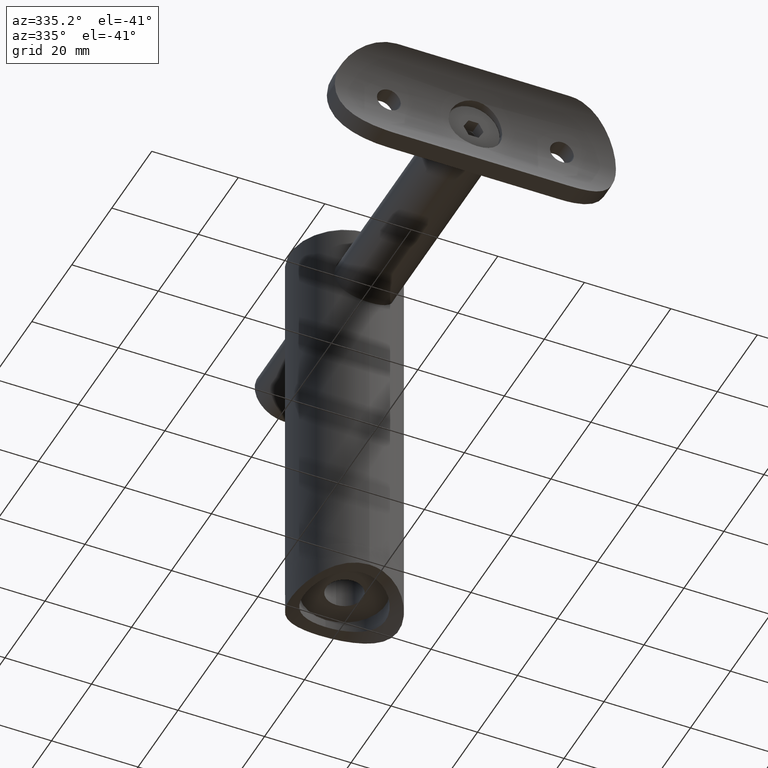
[diagram: clean part render]
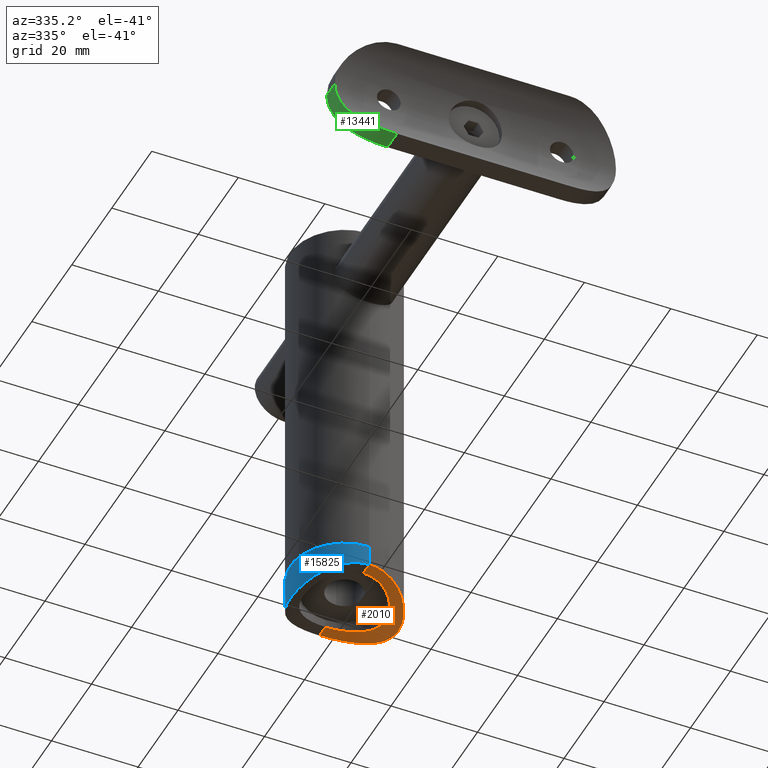
[diagram: same view with three faces highlighted in distinct colors, each labeled with its STEP entity id]
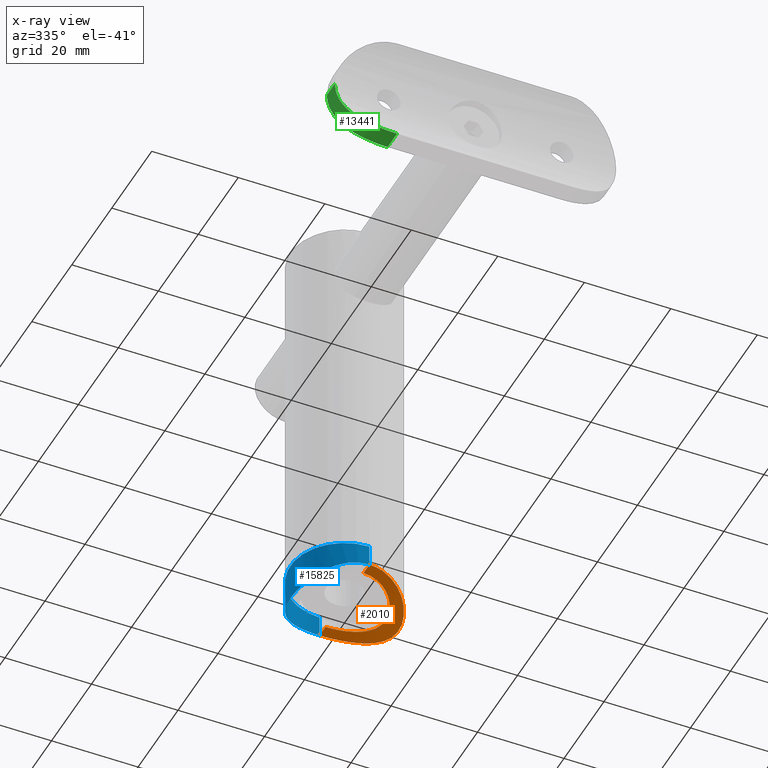
[diagram: x-ray of the same camera — body ghosted, the three highlighted faces saturated]
A machine part, auxiliary view with three faces highlighted in distinct colors.
The next image is the same camera in x-ray (body ghosted, the three faces saturated) — at least one of them is partly hidden behind the body in this view.
Their STEP definitions:

[orange] entity #2010 — the highlighted cylindrical surface (partial cylindrical patch) has radius 21.2 mm, axis along (0, 1, 0).
#20 = CARTESIAN_POINT ( 'NONE',  ( 12.49952788043968255, 0.4368485482069777714, -4.076863514619261331 ) ) ;
#234 = CARTESIAN_POINT ( 'NONE',  ( 11.19951824176104260, 5.610365273027625221, -3.195789650799768289 ) ) ;
#294 = CARTESIAN_POINT ( 'NONE',  ( 4.484770986791653868, 11.67494392594038644, -0.4761762759779024634 ) ) ;
#368 = CARTESIAN_POINT ( 'NONE',  ( 0.6275527403728607956, -9.484530375464524710, -0.006946249597816606808 ) ) ;
#439 = CARTESIAN_POINT ( 'NONE',  ( 9.484201583095373422, -0.6321545745067549404, -2.239748020085416513 ) ) ;
#1792 = CARTESIAN_POINT ( 'NONE',  ( 12.05928981790097509, 3.315947863389200112, -3.763379523277600835 ) ) ;
#1858 = CARTESIAN_POINT ( 'NONE',  ( 6.327442067174433582, 10.81070993117193701, -0.9537559661941126254 ) ) ;
#1871 = CARTESIAN_POINT ( 'NONE',  ( 2.494860140251018876, -9.188019338493548460, -0.1382508987464481087 ) ) ;
#1939 = CARTESIAN_POINT ( 'NONE',  ( 2.497496432925480736, 9.187099242428551804, -0.1386512340528949505 ) ) ;
#2005 = CARTESIAN_POINT ( 'NONE',  ( 3.954528069767159426, -8.643450230156611624, -0.3700392544246411397 ) ) ;
#2010 = ADVANCED_FACE ( 'NONE', ( #2729 ), #17287, .F. ) ;
#2027 = VECTOR ( 'NONE', #8477, 1000.000000000000000 ) ;
#2064 = VERTEX_POINT ( 'NONE', #8362 ) ;
#2070 = CARTESIAN_POINT ( 'NONE',  ( 1.530808498934191521E-15, -12.50000000000000000, 0.000000000000000000 ) ) ;
#2082 = CARTESIAN_POINT ( 'NONE',  ( 6.285444926192725212, 7.150170555696141683, -0.9479603564727804299 ) ) ;
#2199 = CARTESIAN_POINT ( 'NONE',  ( 4.105579123586817758, -11.81380058909568476, -0.3974590877189465021 ) ) ;
#2497 = EDGE_CURVE ( 'NONE', #9251, #8139, #6833, .T. ) ;
#2558 = ORIENTED_EDGE ( 'NONE', *, *, #2497, .T. ) ;
#2649 = EDGE_CURVE ( 'NONE', #16453, #9251, #19268, .T. ) ;
#2729 = FACE_OUTER_BOUND ( 'NONE', #4294, .T. ) ;
#3441 = CARTESIAN_POINT ( 'NONE',  ( 1.579045547333426391, 9.373056352659103752, -0.05665375992293917445 ) ) ;
#3500 = CARTESIAN_POINT ( 'NONE',  ( 3.314268895872203302, -12.05973822206781776, -0.2568123239795945811 ) ) ;
#3515 = CARTESIAN_POINT ( 'NONE',  ( 6.277740334854450488, -7.136851971882867574, -0.9492873198018613179 ) ) ;
#3587 = CARTESIAN_POINT ( 'NONE',  ( 4.784301838411238350, 8.213179465520736855, -0.5450195661238212974 ) ) ;
#3646 = CARTESIAN_POINT ( 'NONE',  ( 10.80857782698150693, -6.291928922265640267, -2.960889035143796644 ) ) ;
#3655 = CARTESIAN_POINT ( 'NONE',  ( 0.3180640098494555423, 9.500000000000005329, 1.712888848892041935E-17 ) ) ;
#3905 = CARTESIAN_POINT ( 'NONE',  ( 1.530808498934191521E-15, -12.50000000000000000, 0.000000000000000000 ) ) ;
#3919 = VECTOR ( 'NONE', #16134, 1000.000000000000000 ) ;
#4294 = EDGE_LOOP ( 'NONE', ( #12440, #17736, #2558, #13272 ) ) ;
#4663 = CARTESIAN_POINT ( 'NONE',  ( 7.658649217430773426, 9.887116871149988384, -1.428917258316854344 ) ) ;
#4806 = CARTESIAN_POINT ( 'NONE',  ( 8.275085783090288416, 9.377256695960113575, -1.678894091352529871 ) ) ;
#5092 = CARTESIAN_POINT ( 'NONE',  ( 3.090247328760950651, -9.005024596866380904, -0.2182794052958286768 ) ) ;
#5160 = CARTESIAN_POINT ( 'NONE',  ( 1.268301397354656634, 9.420298035749835819, -0.03561470730267386753 ) ) ;
#5221 = CARTESIAN_POINT ( 'NONE',  ( 9.926636468171464500, -7.639131853456513355, -2.460587857928715039 ) ) ;
#5233 = CARTESIAN_POINT ( 'NONE',  ( 1.257325311143241864, -9.421744633931506741, -0.03497028654710137435 ) ) ;
#5294 = CARTESIAN_POINT ( 'NONE',  ( 0.8493063021244323663, -12.47821017736088756, -0.01286860730927485812 ) ) ;
#5417 = CARTESIAN_POINT ( 'NONE',  ( 0.000000000000000000, -12.50000000000000000, -21.19999999999999929 ) ) ;
#5741 = AXIS2_PLACEMENT_3D ( 'NONE', #5417, #18016, #14922 ) ;
#6273 = CARTESIAN_POINT ( 'NONE',  ( 10.81845405890102718, 6.312809980033599722, -2.960938029448109354 ) ) ;
#6407 = CARTESIAN_POINT ( 'NONE',  ( 9.907181247822171244, 7.632686742754889231, -2.455152407378314194 ) ) ;
#6562 = CARTESIAN_POINT ( 'NONE',  ( 9.500164495551658206, 0.3083332013167103813, -2.247773888224446459 ) ) ;
#6614 = CARTESIAN_POINT ( 'NONE',  ( 9.421823641441763542, -8.253338742496664437, -2.198572594055990148 ) ) ;
#6624 = CARTESIAN_POINT ( 'NONE',  ( 1.571899491397569681, -9.374307366943451569, -0.05609940030373498226 ) ) ;
#6664 = EDGE_CURVE ( 'NONE', #8139, #2064, #8109, .T. ) ;
#6698 = CARTESIAN_POINT ( 'NONE',  ( 9.004623482620557340, -3.090168278521506551, -2.005593315994512515 ) ) ;
#6833 = B_SPLINE_CURVE_WITH_KNOTS ( 'NONE', 3,
 ( #19433, #17843, #368, #5233, #6624, #1871, #5092, #2005, #16269, #9834, #13088, #14537, #15983, #3515, #19152, #6844, #12959, #8275, #16126, #6698, #8206, #19218, #8408, #439, #12888, #6562, #19365, #17710, #11445, #9972, #9902, #13161, #11515, #14397, #17578, #2082, #8138, #19287, #3587, #11373, #11583, #14607, #1939, #3441, #5160, #16201, #3655, #14677 ),
 .UNSPECIFIED., .F., .F.,
 ( 4, 2, 2, 2, 2, 2, 2, 2, 2, 2, 2, 2, 2, 2, 2, 2, 2, 2, 2, 2, 2, 2, 2, 4 ),
 ( 0.03010768622472317912, 0.03104749670329303921, 0.03198730718186289929, 0.03386692813900261251, 0.03480673861757246912, 0.03574654909614233267, 0.03668635957471218928, 0.03762617005328204589, 0.03950579101042176605, 0.04138541196756148621, 0.04326503292470119943, 0.04420484340327106298, 0.04514465388184091960, 0.04608446436041077621, 0.04702427483898063976, 0.04890389579612035298, 0.05078351675326008008, 0.05266313771039980024, 0.05454275866753952040, 0.05548256914610938395, 0.05642237962467924056, 0.05830200058181896766, 0.05924181106038882427, 0.06018162153895869476 ),
 .UNSPECIFIED. ) ;
#6844 = CARTESIAN_POINT ( 'NONE',  ( 7.159169670778224415, -6.274913268511824960, -1.240137327851930316 ) ) ;
#7852 = CARTESIAN_POINT ( 'NONE',  ( 12.16283172011047320, 2.913318855141288299, -3.835786719495810182 ) ) ;
#7921 = CARTESIAN_POINT ( 'NONE',  ( 1.677193835120719623, 12.41473863385456333, -0.05058743771265820227 ) ) ;
#8109 = LINE ( 'NONE', #17853, #3919 ) ;
#8138 = CARTESIAN_POINT ( 'NONE',  ( 5.810475658887211736, 7.540831483076037678, -0.8050407131529412341 ) ) ;
#8139 = VERTEX_POINT ( 'NONE', #13387 ) ;
#8206 = CARTESIAN_POINT ( 'NONE',  ( 9.187067631764410436, -2.498277563287346403, -2.093536295156249061 ) ) ;
#8275 = CARTESIAN_POINT ( 'NONE',  ( 8.230211339286329419, -4.784343041113610084, -1.659292500980773299 ) ) ;
#8328 = CARTESIAN_POINT ( 'NONE',  ( 11.68253881569350128, -4.464708600178402875, -3.508378586956061973 ) ) ;
#8362 = CARTESIAN_POINT ( 'NONE',  ( 0.000000000000000000, 12.50000000000000000, -5.261240927112904875E-16 ) ) ;
#8408 = CARTESIAN_POINT ( 'NONE',  ( 9.421294845262025319, -1.260516764465202000, -2.208411381633107684 ) ) ;
#8477 = DIRECTION ( 'NONE',  ( -0.000000000000000000, 1.000000000000000000, -0.000000000000000000 ) ) ;
#8658 = CARTESIAN_POINT ( 'NONE',  ( 0.000000000000000000, -12.50000000000000000, 0.000000000000000000 ) ) ;
#9251 = VERTEX_POINT ( 'NONE', #19480 ) ;
#9416 = CARTESIAN_POINT ( 'NONE',  ( 12.47743914675955779, 0.8590761027902540370, -4.060680339665353245 ) ) ;
#9620 = CARTESIAN_POINT ( 'NONE',  ( 9.131153934576976994, 8.545773481795480464, -2.064755425040019521 ) ) ;
#9760 = CARTESIAN_POINT ( 'NONE',  ( 10.59835307524082815, -6.639730706434157526, -2.837515640770630121 ) ) ;
#9834 = CARTESIAN_POINT ( 'NONE',  ( 4.783310945264682701, -8.213765227419397519, -0.5447870395397985677 ) ) ;
#9902 = CARTESIAN_POINT ( 'NONE',  ( 9.006626258510808114, 3.084760097826170888, -2.006523651473711922 ) ) ;
#9972 = CARTESIAN_POINT ( 'NONE',  ( 9.189751204263838957, 2.489596316880424709, -2.094826447112144496 ) ) ;
#10036 = CARTESIAN_POINT ( 'NONE',  ( 8.277917003856295253, -9.374850157636904768, -1.680064173656782511 ) ) ;
#11014 = CARTESIAN_POINT ( 'NONE',  ( 12.39224670344945345, 1.690183733302201174, -3.998982945155021174 ) ) ;
#11157 = CARTESIAN_POINT ( 'NONE',  ( 3.299544761782136071, 12.06386656912338573, -0.2544362983334328976 ) ) ;
#11232 = CARTESIAN_POINT ( 'NONE',  ( 11.81299108572394552, 4.107946293886027611, -3.595584469514716996 ) ) ;
#11373 = CARTESIAN_POINT ( 'NONE',  ( 4.239366036345280087, 8.507269633893045579, -0.4263258807038411424 ) ) ;
#11438 = CARTESIAN_POINT ( 'NONE',  ( 7.658205628427102063, -9.887548328762056471, -1.428715490893919027 ) ) ;
#11445 = CARTESIAN_POINT ( 'NONE',  ( 9.376383539940048806, 1.559915371507269333, -2.186104354117754500 ) ) ;
#11511 = CARTESIAN_POINT ( 'NONE',  ( 11.19286692429163033, -5.579736034962373026, -3.194160573709634576 ) ) ;
#11515 = CARTESIAN_POINT ( 'NONE',  ( 8.231209276049824553, 4.782705285943062101, -1.659707158651053893 ) ) ;
#11574 = CARTESIAN_POINT ( 'NONE',  ( 12.50092163456458572, -0.8325225752573196525, -4.077880983653365377 ) ) ;
#11583 = CARTESIAN_POINT ( 'NONE',  ( 3.955815279988136535, 8.642861845624873141, -0.3702836407211533842 ) ) ;
#12440 = ORIENTED_EDGE ( 'NONE', *, *, #18754, .T. ) ;
#12669 = CARTESIAN_POINT ( 'NONE',  ( 5.615852831644743581, 11.19741679516262600, -0.7426697937745310174 ) ) ;
#12888 = CARTESIAN_POINT ( 'NONE',  ( 9.499832844097339191, -0.3183877192732357253, -2.247607645243915098 ) ) ;
#12959 = CARTESIAN_POINT ( 'NONE',  ( 7.546544590892585447, -5.803101047029879389, -1.385225386363504452 ) ) ;
#13015 = CARTESIAN_POINT ( 'NONE',  ( 12.41682490114521542, -1.662227575578483441, -4.015612738538496096 ) ) ;
#13080 = CARTESIAN_POINT ( 'NONE',  ( 6.341786811947650371, -10.80157710299960350, -0.9585494183447895722 ) ) ;
#13088 = CARTESIAN_POINT ( 'NONE',  ( 5.046899678109953769, -8.054386237921365321, -0.6078148238815975768 ) ) ;
#13151 = CARTESIAN_POINT ( 'NONE',  ( 11.36768113948518533, -5.214514510065638042, -3.304441698743988187 ) ) ;
#13161 = CARTESIAN_POINT ( 'NONE',  ( 8.528820743348861200, 4.230162898690669415, -1.789485642318580538 ) ) ;
#13272 = ORIENTED_EDGE ( 'NONE', *, *, #6664, .T. ) ;
#13387 = CARTESIAN_POINT ( 'NONE',  ( 1.770460806215789106E-16, 9.500000000000001776, 9.112057225737407952E-16 ) ) ;
#14273 = B_SPLINE_CURVE_WITH_KNOTS ( 'NONE', 3,
 ( #15763, #17358, #7921, #18926, #11157, #19144, #294, #12669, #1858, #19068, #4663, #4806, #15695, #9620, #15835, #6407, #14317, #6273, #234, #17279, #11232, #1792, #7852, #18852, #11014, #9416, #20, #11574, #13015, #16045, #19352, #17637, #8328, #13151, #11511, #3646, #9760, #5221, #6614, #14736, #10036, #11438, #19494, #13080, #14665, #17767, #2199, #3500, #19275, #17830, #16256, #5294, #14525, #2070 ),
 .UNSPECIFIED., .F., .F.,
 ( 4, 2, 2, 2, 2, 2, 2, 2, 2, 2, 2, 2, 2, 2, 2, 2, 2, 2, 2, 2, 2, 2, 2, 2, 2, 2, 4 ),
 ( 0.04004282410750471810, 0.04254226347006971609, 0.04379198315135222203, 0.04504170283263472102, 0.04754114219519971901, 0.04879086187648222495, 0.05004058155776472394, 0.05129030123904722294, 0.05254002092032972887, 0.05503946028289473380, 0.05628917996417723280, 0.05753889964545973179, 0.05878861932674223079, 0.06003833900802472978, 0.06253777837058974165, 0.06378749805187224065, 0.06503721773315473964, 0.06628693741443722476, 0.06753665709571973763, 0.07003609645828472174, 0.07128581613956722074, 0.07253553582084971973, 0.07503497518341471773, 0.07628469486469721672, 0.07753441454597971572, 0.07878413422726221471, 0.08003385390854471371 ),
 .UNSPECIFIED. ) ;
#14317 = CARTESIAN_POINT ( 'NONE',  ( 10.14840342747128865, 7.308901243718507246, -2.585073453788892195 ) ) ;
#14397 = CARTESIAN_POINT ( 'NONE',  ( 7.546992758907244969, 5.802583587964756262, -1.385390471452557115 ) ) ;
#14525 = CARTESIAN_POINT ( 'NONE',  ( 0.4231827426424521477, -12.50000000000000178, 3.049318610115447941E-17 ) ) ;
#14537 = CARTESIAN_POINT ( 'NONE',  ( 5.556618797412577138, -7.711570629305333213, -0.7394703336228837243 ) ) ;
#14607 = CARTESIAN_POINT ( 'NONE',  ( 3.091537738773918242, 9.004584169050772857, -0.2184693847345247075 ) ) ;
#14665 = CARTESIAN_POINT ( 'NONE',  ( 5.634036949567876817, -11.18857916297122657, -0.7475340222135680168 ) ) ;
#14677 = CARTESIAN_POINT ( 'NONE',  ( 1.770460806215789106E-16, 9.500000000000001776, 9.112057225737407952E-16 ) ) ;
#14736 = CARTESIAN_POINT ( 'NONE',  ( 8.576233453199916923, -9.102626546136086461, -1.809681003019513623 ) ) ;
#14922 = DIRECTION ( 'NONE',  ( 0.000000000000000000, 0.000000000000000000, 1.000000000000000000 ) ) ;
#15695 = CARTESIAN_POINT ( 'NONE',  ( 8.569357823279592168, 9.109024265841888734, -1.806659297143442533 ) ) ;
#15763 = CARTESIAN_POINT ( 'NONE',  ( 0.000000000000000000, 12.50000000000000000, -5.261240927112904875E-16 ) ) ;
#15835 = CARTESIAN_POINT ( 'NONE',  ( 9.398677270982503273, 8.250758313400195831, -2.195094919896832586 ) ) ;
#15983 = CARTESIAN_POINT ( 'NONE',  ( 5.802747939028370716, -7.528133642313273199, -0.8081019980018004922 ) ) ;
#16045 = CARTESIAN_POINT ( 'NONE',  ( 12.16984790407604322, -2.883996753870297969, -3.840709158031506476 ) ) ;
#16126 = CARTESIAN_POINT ( 'NONE',  ( 8.528049326743902370, -4.231401509425090524, -1.789155950979903320 ) ) ;
#16134 = DIRECTION ( 'NONE',  ( -0.000000000000000000, 1.000000000000000000, -0.000000000000000000 ) ) ;
#16201 = CARTESIAN_POINT ( 'NONE',  ( 0.6371383030246021706, 9.483915768273302405, -0.007221795264935388335 ) ) ;
#16256 = CARTESIAN_POINT ( 'NONE',  ( 1.686513140915326892, -12.39284970661473828, -0.06302927873795291513 ) ) ;
#16269 = CARTESIAN_POINT ( 'NONE',  ( 4.237929542509485614, -8.507993653205097928, -0.4260297671875604708 ) ) ;
#16453 = VERTEX_POINT ( 'NONE', #3905 ) ;
#17279 = CARTESIAN_POINT ( 'NONE',  ( 11.67210911516328586, 4.491739155361240243, -3.501495300727552884 ) ) ;
#17287 = CYLINDRICAL_SURFACE ( 'NONE', #5741, 21.19999999999999929 ) ;
#17358 = CARTESIAN_POINT ( 'NONE',  ( 0.8474616539393307058, 12.50000000000000000, -5.374424050328533679E-16 ) ) ;
#17578 = CARTESIAN_POINT ( 'NONE',  ( 7.158647790673239086, 6.275788293500274229, -1.239897559073271927 ) ) ;
#17637 = CARTESIAN_POINT ( 'NONE',  ( 11.82258794161552373, -4.080128214362262362, -3.602040162122799316 ) ) ;
#17710 = CARTESIAN_POINT ( 'NONE',  ( 9.423119199064263540, 1.246379904746041323, -2.209317699341028174 ) ) ;
#17736 = ORIENTED_EDGE ( 'NONE', *, *, #2649, .T. ) ;
#17767 = CARTESIAN_POINT ( 'NONE',  ( 4.497906677117311069, -11.66996163373024764, -0.4789896541132562247 ) ) ;
#17830 = CARTESIAN_POINT ( 'NONE',  ( 2.099149467039291839, -12.32948117877257133, -0.1002009966568829374 ) ) ;
#17843 = CARTESIAN_POINT ( 'NONE',  ( 0.3134130146678049678, -9.500000000000001776, 7.404126750186650867E-16 ) ) ;
#17853 = CARTESIAN_POINT ( 'NONE',  ( 0.000000000000000000, -12.50000000000000000, 0.000000000000000000 ) ) ;
#18016 = DIRECTION ( 'NONE',  ( -0.000000000000000000, 1.000000000000000000, -0.000000000000000000 ) ) ;
#18754 = EDGE_CURVE ( 'NONE', #2064, #16453, #14273, .T. ) ;
#18852 = CARTESIAN_POINT ( 'NONE',  ( 12.32914928014637823, 2.100947460388598031, -3.953479877655619479 ) ) ;
#18926 = CARTESIAN_POINT ( 'NONE',  ( 2.897069353050997886, 12.16672379034243612, -0.1948899815732027530 ) ) ;
#19068 = CARTESIAN_POINT ( 'NONE',  ( 7.335528771759538991, 10.12938846727852393, -1.306364138595596858 ) ) ;
#19144 = CARTESIAN_POINT ( 'NONE',  ( 4.096177303198103026, 11.81715717646936170, -0.3955541790620945020 ) ) ;
#19152 = CARTESIAN_POINT ( 'NONE',  ( 6.507548724582323807, -6.927941348104147856, -1.022183798446198111 ) ) ;
#19218 = CARTESIAN_POINT ( 'NONE',  ( 9.373631752533530204, -1.575889711037794072, -2.184747713698973026 ) ) ;
#19268 = LINE ( 'NONE', #8658, #2027 ) ;
#19275 = CARTESIAN_POINT ( 'NONE',  ( 2.913028033381143356, -12.16292737376220501, -0.1970903410221248320 ) ) ;
#19287 = CARTESIAN_POINT ( 'NONE',  ( 5.047492488738597238, 8.053990395188916906, -0.6079671353264675115 ) ) ;
#19352 = CARTESIAN_POINT ( 'NONE',  ( 12.06641939663192176, -3.289765162964158662, -3.768324835594353939 ) ) ;
#19365 = CARTESIAN_POINT ( 'NONE',  ( 9.484863755966435050, 0.6212872423304436342, -2.240080453359254875 ) ) ;
#19433 = CARTESIAN_POINT ( 'NONE',  ( 1.163408702497735518E-15, -9.500000000000001776, 5.232710601427350400E-16 ) ) ;
#19480 = CARTESIAN_POINT ( 'NONE',  ( 1.163408702497735518E-15, -9.500000000000001776, 5.232710601427350400E-16 ) ) ;
#19494 = CARTESIAN_POINT ( 'NONE',  ( 7.337423735946516423, -10.12782281091194569, -1.307140519180895577 ) ) ;

[blue] entity #15825 — the highlighted cylindrical surface (partial cylindrical patch) has radius 12.5 mm, axis along (0, 0, -1).
#70 = ORIENTED_EDGE ( 'NONE', *, *, #6522, .F. ) ;
#195 = AXIS2_PLACEMENT_3D ( 'NONE', #2951, #9146, #15774 ) ;
#1112 = LINE ( 'NONE', #14214, #20343 ) ;
#1321 = CARTESIAN_POINT ( 'NONE',  ( -1.677193835120720955, -12.41473863385456156, -0.05058743771265820921 ) ) ;
#1390 = CARTESIAN_POINT ( 'NONE',  ( -12.05928981790097154, -3.315947863389198336, -3.763379523277602168 ) ) ;
#1457 = CARTESIAN_POINT ( 'NONE',  ( -3.299544761782136071, -12.06386656912337862, -0.2544362983334328976 ) ) ;
#1528 = CARTESIAN_POINT ( 'NONE',  ( -10.80857782698150871, 6.291928922265645596, -2.960889035143795756 ) ) ;
#1595 = CARTESIAN_POINT ( 'NONE',  ( -11.68253881569349950, 4.464708600178406428, -3.508378586956059308 ) ) ;
#2014 = CARTESIAN_POINT ( 'NONE',  ( 0.000000000000000000, 12.50000000000000000, 5.000000000000000000 ) ) ;
#2064 = VERTEX_POINT ( 'NONE', #8362 ) ;
#2163 = CARTESIAN_POINT ( 'NONE',  ( 0.000000000000000000, -6.123233995736764310E-16, 4.999999999999998224 ) ) ;
#2888 = CARTESIAN_POINT ( 'NONE',  ( -4.105579123586816870, 11.81380058909568298, -0.3974590877189427274 ) ) ;
#2951 = CARTESIAN_POINT ( 'NONE',  ( 0.000000000000000000, 0.000000000000000000, 0.000000000000000000 ) ) ;
#2957 = CARTESIAN_POINT ( 'NONE',  ( -4.497906677117297747, 11.66996163373025475, -0.4789896541132539487 ) ) ;
#3029 = CARTESIAN_POINT ( 'NONE',  ( -9.131153934576975217, -8.545773481795482240, -2.064755425040014636 ) ) ;
#3107 = CARTESIAN_POINT ( 'NONE',  ( -0.4242796211472562584, 12.49999999999999467, -5.563124168022411105E-16 ) ) ;
#3175 = CARTESIAN_POINT ( 'NONE',  ( -10.81845405890102718, -6.312809980033596169, -2.960938029448110242 ) ) ;
#3905 = CARTESIAN_POINT ( 'NONE',  ( 1.530808498934191521E-15, -12.50000000000000000, 0.000000000000000000 ) ) ;
#3947 = CIRCLE ( 'NONE', #19450, 12.50000000000000000 ) ;
#4478 = CARTESIAN_POINT ( 'NONE',  ( -8.275085783090281311, -9.377256695960115351, -1.678894091352528761 ) ) ;
#4608 = CARTESIAN_POINT ( 'NONE',  ( -12.32914928014637646, -2.100947460388592702, -3.953479877655620367 ) ) ;
#4682 = CARTESIAN_POINT ( 'NONE',  ( -12.16283172011047320, -2.913318855141282526, -3.835786719495810626 ) ) ;
#4694 = CYLINDRICAL_SURFACE ( 'NONE', #195, 12.50000000000000000 ) ;
#4751 = CARTESIAN_POINT ( 'NONE',  ( -7.337423735946506653, 10.12782281091194925, -1.307140519180897575 ) ) ;
#5689 = FACE_OUTER_BOUND ( 'NONE', #17216, .T. ) ;
#6015 = CARTESIAN_POINT ( 'NONE',  ( -1.686513140915326225, 12.39284970661473650, -0.06302927873795100000 ) ) ;
#6149 = CARTESIAN_POINT ( 'NONE',  ( -6.341786811947642377, 10.80157710299961416, -0.9585494183447915706 ) ) ;
#6213 = CARTESIAN_POINT ( 'NONE',  ( -11.19951824176104083, -5.610365273027632327, -3.195789650799769621 ) ) ;
#6292 = CARTESIAN_POINT ( 'NONE',  ( -10.59835307524083170, 6.639730706434162855, -2.837515640770625680 ) ) ;
#6465 = DIRECTION ( 'NONE',  ( -0.000000000000000000, 1.224646799147353207E-16, -1.000000000000000000 ) ) ;
#6522 = EDGE_CURVE ( 'NONE', #16453, #2064, #9959, .T. ) ;
#6787 = DIRECTION ( 'NONE',  ( 0.000000000000000000, 1.000000000000000000, 1.387778780781445676E-16 ) ) ;
#6922 = DIRECTION ( 'NONE',  ( -0.000000000000000000, 1.224646799147353207E-16, -1.000000000000000000 ) ) ;
#7067 = ORIENTED_EDGE ( 'NONE', *, *, #16369, .T. ) ;
#7267 = CARTESIAN_POINT ( 'NONE',  ( 1.530808498934191521E-15, -12.50000000000000000, 0.000000000000000000 ) ) ;
#7733 = CARTESIAN_POINT ( 'NONE',  ( -5.615852831644746246, -11.19741679516262423, -0.7426697937745319056 ) ) ;
#7805 = CARTESIAN_POINT ( 'NONE',  ( -12.06641939663192531, 3.289765162964161327, -3.768324835594354383 ) ) ;
#7868 = CARTESIAN_POINT ( 'NONE',  ( -12.39224670344945167, -1.690183733302201619, -3.998982945155021174 ) ) ;
#8114 = CARTESIAN_POINT ( 'NONE',  ( 0.000000000000000000, 12.50000000000000000, 1.530808498934191521E-15 ) ) ;
#8362 = CARTESIAN_POINT ( 'NONE',  ( 0.000000000000000000, 12.50000000000000000, -5.261240927112904875E-16 ) ) ;
#8634 = VERTEX_POINT ( 'NONE', #2014 ) ;
#9026 = CARTESIAN_POINT ( 'NONE',  ( -0.8474616539393305947, -12.50000000000000355, -0.000000000000000000 ) ) ;
#9146 = DIRECTION ( 'NONE',  ( -0.000000000000000000, 1.224646799147353207E-16, -1.000000000000000000 ) ) ;
#9152 = CARTESIAN_POINT ( 'NONE',  ( -11.19286692429163033, 5.579736034962381019, -3.194160573709634576 ) ) ;
#9221 = CARTESIAN_POINT ( 'NONE',  ( -11.67210911516328764, -4.491739155361245572, -3.501495300727554216 ) ) ;
#9357 = CARTESIAN_POINT ( 'NONE',  ( -9.926636468171466277, 7.639131853456515131, -2.460587857928711042 ) ) ;
#9433 = CARTESIAN_POINT ( 'NONE',  ( -3.314268895872201970, 12.05973822206781776, -0.2568123239795907509 ) ) ;
#9449 = DIRECTION ( 'NONE',  ( -0.000000000000000000, 1.224646799147353207E-16, -1.000000000000000000 ) ) ;
#9893 = VERTEX_POINT ( 'NONE', #10618 ) ;
#9959 = B_SPLINE_CURVE_WITH_KNOTS ( 'NONE', 3,
 ( #7267, #9026, #1321, #10889, #1457, #14203, #18798, #7733, #17299, #14058, #17230, #4478, #12487, #3029, #10963, #14133, #18659, #3175, #6213, #9221, #15711, #1390, #4682, #4608, #7868, #12346, #12549, #11032, #15652, #17098, #7805, #15578, #1595, #15508, #9152, #1528, #6292, #9357, #10815, #17031, #12617, #10757, #4751, #6149, #12417, #2957, #2888, #9433, #18723, #20267, #6015, #20403, #3107, #18871 ),
 .UNSPECIFIED., .F., .F.,
 ( 4, 2, 2, 2, 2, 2, 2, 2, 2, 2, 2, 2, 2, 2, 2, 2, 2, 2, 2, 2, 2, 2, 2, 2, 2, 2, 4 ),
 ( 1.489330742102178506E-18, 0.002502676506719043580, 0.003754014760078563419, 0.005005353013438084558, 0.007508029520157129440, 0.008759367773516652314, 0.01001070602687617432, 0.01126204428023569633, 0.01251338253359522007, 0.01501605904031426235, 0.01626739729367378262, 0.01751873554703330463, 0.01877007380039282664, 0.02002141205375234517, 0.02252408856047138572, 0.02377542681383090772, 0.02502676506719042973, 0.02627810332054994827, 0.02752944157390947028, 0.03003211808062851082, 0.03128345633398803977, 0.03253479458734756524, 0.03503747109406661620, 0.03628880934742614167, 0.03754014760078566715, 0.03879148585414519262, 0.04004282410750471810 ),
 .UNSPECIFIED. ) ;
#10618 = CARTESIAN_POINT ( 'NONE',  ( 1.530808498934191521E-15, -12.50000000000000000, 4.999999999999996447 ) ) ;
#10757 = CARTESIAN_POINT ( 'NONE',  ( -7.658205628427092293, 9.887548328762060024, -1.428715490893913032 ) ) ;
#10815 = CARTESIAN_POINT ( 'NONE',  ( -9.421823641441761765, 8.253338742496669767, -2.198572594055990148 ) ) ;
#10889 = CARTESIAN_POINT ( 'NONE',  ( -2.897069353050999663, -12.16672379034243434, -0.1948899815732027807 ) ) ;
#10963 = CARTESIAN_POINT ( 'NONE',  ( -9.398677270982499721, -8.250758313400194055, -2.195094919896831698 ) ) ;
#11032 = CARTESIAN_POINT ( 'NONE',  ( -12.50092163456458394, 0.8325225752573188753, -4.077880983653366265 ) ) ;
#11260 = EDGE_CURVE ( 'NONE', #9893, #16453, #1112, .T. ) ;
#12346 = CARTESIAN_POINT ( 'NONE',  ( -12.47743914675955601, -0.8590761027902552582, -4.060680339665352356 ) ) ;
#12417 = CARTESIAN_POINT ( 'NONE',  ( -5.634036949567863495, 11.18857916297123722, -0.7475340222135644641 ) ) ;
#12487 = CARTESIAN_POINT ( 'NONE',  ( -8.569357823279590392, -9.109024265841890511, -1.806659297143438980 ) ) ;
#12549 = CARTESIAN_POINT ( 'NONE',  ( -12.49952788043968255, -0.4368485482069772163, -4.076863514619260442 ) ) ;
#12617 = CARTESIAN_POINT ( 'NONE',  ( -8.277917003856288147, 9.374850157636908321, -1.680064173656778292 ) ) ;
#13815 = VECTOR ( 'NONE', #6465, 1000.000000000000000 ) ;
#14058 = CARTESIAN_POINT ( 'NONE',  ( -7.335528771759535438, -10.12938846727852571, -1.306364138595595970 ) ) ;
#14133 = CARTESIAN_POINT ( 'NONE',  ( -9.907181247822165915, -7.632686742754887455, -2.455152407378312418 ) ) ;
#14203 = CARTESIAN_POINT ( 'NONE',  ( -4.096177303198109243, -11.81715717646936348, -0.3955541790620944465 ) ) ;
#14214 = CARTESIAN_POINT ( 'NONE',  ( 1.530808498934191521E-15, -12.50000000000000000, -1.530808498934191521E-15 ) ) ;
#14558 = LINE ( 'NONE', #8114, #13815 ) ;
#15465 = ORIENTED_EDGE ( 'NONE', *, *, #17003, .T. ) ;
#15508 = CARTESIAN_POINT ( 'NONE',  ( -11.36768113948518710, 5.214514510065643371, -3.304441698743988631 ) ) ;
#15578 = CARTESIAN_POINT ( 'NONE',  ( -11.82258794161551663, 4.080128214362264139, -3.602040162122799760 ) ) ;
#15652 = CARTESIAN_POINT ( 'NONE',  ( -12.41682490114521720, 1.662227575578486993, -4.015612738538502313 ) ) ;
#15711 = CARTESIAN_POINT ( 'NONE',  ( -11.81299108572395085, -4.107946293886024058, -3.595584469514719217 ) ) ;
#15774 = DIRECTION ( 'NONE',  ( 0.000000000000000000, 1.000000000000000000, 1.224646799147353207E-16 ) ) ;
#15825 = ADVANCED_FACE ( 'NONE', ( #5689 ), #4694, .T. ) ;
#16369 = EDGE_CURVE ( 'NONE', #8634, #2064, #14558, .T. ) ;
#16453 = VERTEX_POINT ( 'NONE', #3905 ) ;
#17003 = EDGE_CURVE ( 'NONE', #9893, #8634, #3947, .T. ) ;
#17031 = CARTESIAN_POINT ( 'NONE',  ( -8.576233453199913370, 9.102626546136093566, -1.809681003019512291 ) ) ;
#17098 = CARTESIAN_POINT ( 'NONE',  ( -12.16984790407604500, 2.883996753870301966, -3.840709158031511805 ) ) ;
#17216 = EDGE_LOOP ( 'NONE', ( #19465, #15465, #7067, #70 ) ) ;
#17230 = CARTESIAN_POINT ( 'NONE',  ( -7.658649217430768097, -9.887116871149991937, -1.428917258316853012 ) ) ;
#17299 = CARTESIAN_POINT ( 'NONE',  ( -6.327442067174430917, -10.81070993117193524, -0.9537559661941119593 ) ) ;
#18659 = CARTESIAN_POINT ( 'NONE',  ( -10.14840342747128865, -7.308901243718507246, -2.585073453788890863 ) ) ;
#18723 = CARTESIAN_POINT ( 'NONE',  ( -2.913028033381145132, 12.16292737376221034, -0.1970903410221276075 ) ) ;
#18798 = CARTESIAN_POINT ( 'NONE',  ( -4.484770986791658309, -11.67494392594038821, -0.4761762759779034071 ) ) ;
#18871 = CARTESIAN_POINT ( 'NONE',  ( 0.000000000000000000, 12.50000000000000000, -5.261240927112904875E-16 ) ) ;
#19450 = AXIS2_PLACEMENT_3D ( 'NONE', #2163, #6922, #6787 ) ;
#19465 = ORIENTED_EDGE ( 'NONE', *, *, #11260, .F. ) ;
#20267 = CARTESIAN_POINT ( 'NONE',  ( -2.099149467039293615, 12.32948117877257665, -0.1002009966568856714 ) ) ;
#20343 = VECTOR ( 'NONE', #9449, 1000.000000000000000 ) ;
#20403 = CARTESIAN_POINT ( 'NONE',  ( -0.8493063021244290356, 12.47821017736088223, -0.01286860730927284584 ) ) ;

[green] entity #13441 — the highlighted cylindrical surface (partial cylindrical patch) has radius 12.5 mm, axis along (-0, 1, -0).
#429 = CARTESIAN_POINT ( 'NONE',  ( 12.50000000000000355, 3.318729470161013495, 20.00000000000000000 ) ) ;
#891 = CARTESIAN_POINT ( 'NONE',  ( 2.899666870893740089, 4.195241269652991711, 32.16611798350432139 ) ) ;
#1048 = LINE ( 'NONE', #15002, #16340 ) ;
#1137 = ORIENTED_EDGE ( 'NONE', *, *, #17678, .F. ) ;
#1213 = CARTESIAN_POINT ( 'NONE',  ( 12.50000000000000355, 8.077208171562681116, 20.84935178333090988 ) ) ;
#1251 = CARTESIAN_POINT ( 'NONE',  ( 11.68647699581961064, 2.872938612537728975, 24.45450101598523318 ) ) ;
#1316 = CARTESIAN_POINT ( 'NONE',  ( 0.8408319059978909271, -5.251604272976641764E-17, 32.50000000000000000 ) ) ;
#1451 = CARTESIAN_POINT ( 'NONE',  ( 9.397641427769128697, 1.816225346274615182, 28.25204418689426689 ) ) ;
#2398 = CARTESIAN_POINT ( 'NONE',  ( 0.000000000000000000, 4.000000000000003553, 32.50000000000000000 ) ) ;
#2552 = CYLINDRICAL_SURFACE ( 'NONE', #5668, 12.50000000000000000 ) ;
#2564 = CARTESIAN_POINT ( 'NONE',  ( 9.908890582928830071, 2.028239840774359593, 27.63058222437334166 ) ) ;
#2791 = CARTESIAN_POINT ( 'NONE',  ( 8.281128637814752835, 5.681454197595393829, 29.37193506601935766 ) ) ;
#2825 = CARTESIAN_POINT ( 'NONE',  ( 11.21365936985682232, 2.629676505859719793, 25.58293283478850455 ) ) ;
#3101 = CARTESIAN_POINT ( 'NONE',  ( 0.000000000000000000, 0.000000000000000000, 32.50000000000000000 ) ) ;
#3184 = DIRECTION ( 'NONE',  ( 0.000000000000000000, -1.000000000000000000, 0.000000000000000000 ) ) ;
#4125 = CARTESIAN_POINT ( 'NONE',  ( 3.302492734939012298, 4.254893961373074518, 32.06307353030366158 ) ) ;
#4224 = CARTESIAN_POINT ( 'NONE',  ( 12.50000000000000355, 3.318729470161013495, 20.84092147420121677 ) ) ;
#4253 = CARTESIAN_POINT ( 'NONE',  ( 12.06337854131604459, 7.766211032369483291, 23.30110932669050783 ) ) ;
#4433 = CARTESIAN_POINT ( 'NONE',  ( 7.341278511869139045, 5.308480845423155792, 30.12523760879152945 ) ) ;
#4471 = CARTESIAN_POINT ( 'NONE',  ( 4.083048678825495159, 0.3297619529015493045, 31.82160056614383237 ) ) ;
#4502 = CARTESIAN_POINT ( 'NONE',  ( 12.16642152362135576, 7.838305269537123365, 22.89829279892429170 ) ) ;
#4604 = CARTESIAN_POINT ( 'NONE',  ( 8.562141571826806796, 1.497233673915075114, 29.11593343704043590 ) ) ;
#4617 = B_SPLINE_CURVE_WITH_KNOTS ( 'NONE', 3,
 ( #19759, #13549, #10299, #891, #4125, #18290, #12032, #7563, #15404, #4433, #15333, #2791, #5970, #15265, #13685, #16989, #6039, #7492, #10513, #13809, #12099, #4253, #4502, #18492, #1213, #12170 ),
 .UNSPECIFIED., .F., .F.,
 ( 4, 2, 2, 2, 2, 2, 2, 2, 2, 2, 2, 2, 4 ),
 ( 0.000000000000000000, 0.002504973849704574245, 0.003757460774556858982, 0.005009947699409142419, 0.007514921549113717965, 0.008767408473966002702, 0.01001989539881828657, 0.01127238232367057218, 0.01252486924852285778, 0.01502984309822744113, 0.01628233002307973715, 0.01753481694793202969, 0.02003979079763661478 ),
 .UNSPECIFIED. ) ;
#5668 = AXIS2_PLACEMENT_3D ( 'NONE', #9444, #3184, #10897 ) ;
#5938 = CARTESIAN_POINT ( 'NONE',  ( 12.17172894015757301, 3.134241449003879243, 22.87552147047213325 ) ) ;
#5970 = CARTESIAN_POINT ( 'NONE',  ( 8.575483413111351538, 5.809365382594063654, 29.10327369640210193 ) ) ;
#6039 = CARTESIAN_POINT ( 'NONE',  ( 10.15465027284116317, 6.588481366190970689, 27.30023861733291213 ) ) ;
#6075 = CARTESIAN_POINT ( 'NONE',  ( 1.667268011024896079, 0.04195479554921899279, 32.41603179174911276 ) ) ;
#6158 = ORIENTED_EDGE ( 'NONE', *, *, #15736, .F. ) ;
#6859 = CARTESIAN_POINT ( 'NONE',  ( 12.50000000000000355, 3.318729470161013495, 20.00000000000000000 ) ) ;
#7492 = CARTESIAN_POINT ( 'NONE',  ( 10.82440004562426772, 6.964469962909634049, 26.30269686619442737 ) ) ;
#7563 = CARTESIAN_POINT ( 'NONE',  ( 5.620540116801272745, 4.743934902012521881, 31.19511631914027916 ) ) ;
#7597 = CARTESIAN_POINT ( 'NONE',  ( 10.83002449294436254, 2.440458914311941729, 26.29431497601598267 ) ) ;
#7728 = CARTESIAN_POINT ( 'NONE',  ( 3.291592242805514879, 0.2126942720887864124, 32.06594161125493514 ) ) ;
#7863 = CARTESIAN_POINT ( 'NONE',  ( 8.265288067340183176, 1.391754679466066458, 29.38603808824741037 ) ) ;
#8460 = ORIENTED_EDGE ( 'NONE', *, *, #14563, .F. ) ;
#8619 = ORIENTED_EDGE ( 'NONE', *, *, #17041, .F. ) ;
#8819 = CARTESIAN_POINT ( 'NONE',  ( 10.15187181039420672, 2.133985303426429780, 27.30437927746718074 ) ) ;
#9173 = CARTESIAN_POINT ( 'NONE',  ( 0.000000000000000000, 0.000000000000000000, 32.50000000000000000 ) ) ;
#9330 = CARTESIAN_POINT ( 'NONE',  ( 12.50000000000000355, 8.077208171562682892, 20.00000000000000000 ) ) ;
#9444 = CARTESIAN_POINT ( 'NONE',  ( 0.000000000000000000, 25.19999999999999929, 20.00000000000000000 ) ) ;
#10060 = DIRECTION ( 'NONE',  ( -0.000000000000000000, -1.000000000000000000, -0.000000000000000000 ) ) ;
#10101 = LINE ( 'NONE', #6859, #10336 ) ;
#10299 = CARTESIAN_POINT ( 'NONE',  ( 1.678717414094957006, 4.050679987938036852, 32.41458363564551348 ) ) ;
#10336 = VECTOR ( 'NONE', #10060, 1000.000000000000000 ) ;
#10458 = VERTEX_POINT ( 'NONE', #9330 ) ;
#10513 = CARTESIAN_POINT ( 'NONE',  ( 11.20516604691104412, 7.199313738460709544, 25.59920734051991076 ) ) ;
#10684 = CARTESIAN_POINT ( 'NONE',  ( 11.82730682096132568, 2.947497412072435097, 24.06646263368968519 ) ) ;
#10894 = VERTEX_POINT ( 'NONE', #9173 ) ;
#10897 = DIRECTION ( 'NONE',  ( 0.000000000000000000, 0.000000000000000000, -1.000000000000000000 ) ) ;
#10956 = CARTESIAN_POINT ( 'NONE',  ( 4.468211620779538151, 0.3963447934949464457, 31.68121519372564521 ) ) ;
#11682 = FACE_OUTER_BOUND ( 'NONE', #14985, .T. ) ;
#12032 = CARTESIAN_POINT ( 'NONE',  ( 4.488656383330081212, 4.477012003651386962, 31.67346302616766351 ) ) ;
#12099 = CARTESIAN_POINT ( 'NONE',  ( 11.81770469574649418, 7.598751313526327600, 24.09442063569178671 ) ) ;
#12170 = CARTESIAN_POINT ( 'NONE',  ( 12.50000000000000355, 8.077208171562682892, 20.00000000000000000 ) ) ;
#12611 = CARTESIAN_POINT ( 'NONE',  ( 7.315607594578458439, 1.082687997029814886, 30.14380031678955518 ) ) ;
#13320 = B_SPLINE_CURVE_WITH_KNOTS ( 'NONE', 3,
 ( #13658, #4224, #15442, #5938, #18530, #10684, #1251, #2825, #7597, #8819, #2564, #1451, #17163, #4604, #7863, #17292, #12611, #13916, #20398, #10956, #4471, #7728, #14197, #6075, #1316, #3101 ),
 .UNSPECIFIED., .F., .F.,
 ( 4, 2, 2, 2, 2, 2, 2, 2, 2, 2, 2, 2, 4 ),
 ( 0.000000000000000000, 0.002482949619020690529, 0.003724424428531040131, 0.004965899238041389732, 0.007448848857062097609, 0.008690323666572448078, 0.009931798476082796812, 0.01117327328559314728, 0.01241474809510349428, 0.01489769771412418828, 0.01613917252363453528, 0.01738064733314488228, 0.01986359695216557281 ),
 .UNSPECIFIED. ) ;
#13441 = ADVANCED_FACE ( 'NONE', ( #11682 ), #2552, .T. ) ;
#13549 = CARTESIAN_POINT ( 'NONE',  ( 0.8482395851185927649, 4.000000000000004441, 32.50000000000000000 ) ) ;
#13658 = CARTESIAN_POINT ( 'NONE',  ( 12.50000000000000355, 3.318729470161013495, 20.00000000000000000 ) ) ;
#13685 = CARTESIAN_POINT ( 'NONE',  ( 9.404962878365170198, 6.198203738630029491, 28.24361247481621717 ) ) ;
#13809 = CARTESIAN_POINT ( 'NONE',  ( 11.67708478872317279, 7.504780197938368147, 24.47882887395968510 ) ) ;
#13916 = CARTESIAN_POINT ( 'NONE',  ( 6.305223603466182603, 0.7914857843385423308, 30.82374023567219368 ) ) ;
#14197 = CARTESIAN_POINT ( 'NONE',  ( 2.886391478844329672, 0.1625181075792131447, 32.16925023365995884 ) ) ;
#14563 = EDGE_CURVE ( 'NONE', #10894, #14637, #1048, .T. ) ;
#14637 = VERTEX_POINT ( 'NONE', #2398 ) ;
#14985 = EDGE_LOOP ( 'NONE', ( #8619, #1137, #8460, #6158 ) ) ;
#15002 = CARTESIAN_POINT ( 'NONE',  ( 0.000000000000000000, 8.077208171562682892, 32.50000000000000000 ) ) ;
#15265 = CARTESIAN_POINT ( 'NONE',  ( 9.137400882198218000, 6.067735843547090724, 28.53911077795327600 ) ) ;
#15333 = CARTESIAN_POINT ( 'NONE',  ( 7.664485972305213224, 5.431176652695318019, 29.88260659836541322 ) ) ;
#15404 = CARTESIAN_POINT ( 'NONE',  ( 6.332596659029535502, 4.955350400242434006, 30.80774938862474954 ) ) ;
#15442 = CARTESIAN_POINT ( 'NONE',  ( 12.41604513394916331, 3.270190002513736260, 21.66440971848879826 ) ) ;
#15736 = EDGE_CURVE ( 'NONE', #18863, #10894, #13320, .T. ) ;
#16340 = VECTOR ( 'NONE', #18375, 1000.000000000000000 ) ;
#16989 = CARTESIAN_POINT ( 'NONE',  ( 9.913493343117123047, 6.458488917965734544, 27.62450805720243707 ) ) ;
#17041 = EDGE_CURVE ( 'NONE', #10458, #18863, #10101, .T. ) ;
#17163 = CARTESIAN_POINT ( 'NONE',  ( 9.128318860952353120, 1.709465851586690732, 28.54893592778294575 ) ) ;
#17292 = CARTESIAN_POINT ( 'NONE',  ( 7.642973678624867873, 1.184744735341883182, 29.89937630247453981 ) ) ;
#17678 = EDGE_CURVE ( 'NONE', #14637, #10458, #4617, .T. ) ;
#18290 = CARTESIAN_POINT ( 'NONE',  ( 4.099810591710028262, 4.396262875489091115, 31.81591106829855065 ) ) ;
#18375 = DIRECTION ( 'NONE',  ( 0.000000000000000000, 1.000000000000000000, 0.000000000000000000 ) ) ;
#18492 = CARTESIAN_POINT ( 'NONE',  ( 12.41439949553292799, 8.013851170719203054, 21.67938694774174380 ) ) ;
#18530 = CARTESIAN_POINT ( 'NONE',  ( 12.07039748615804342, 3.078414103210619146, 23.27518083691608552 ) ) ;
#18863 = VERTEX_POINT ( 'NONE', #429 ) ;
#19759 = CARTESIAN_POINT ( 'NONE',  ( 0.000000000000000000, 4.000000000000003553, 32.50000000000000000 ) ) ;
#20398 = CARTESIAN_POINT ( 'NONE',  ( 5.594010815491769151, 0.6168360506386498798, 31.20802645236641837 ) ) ;